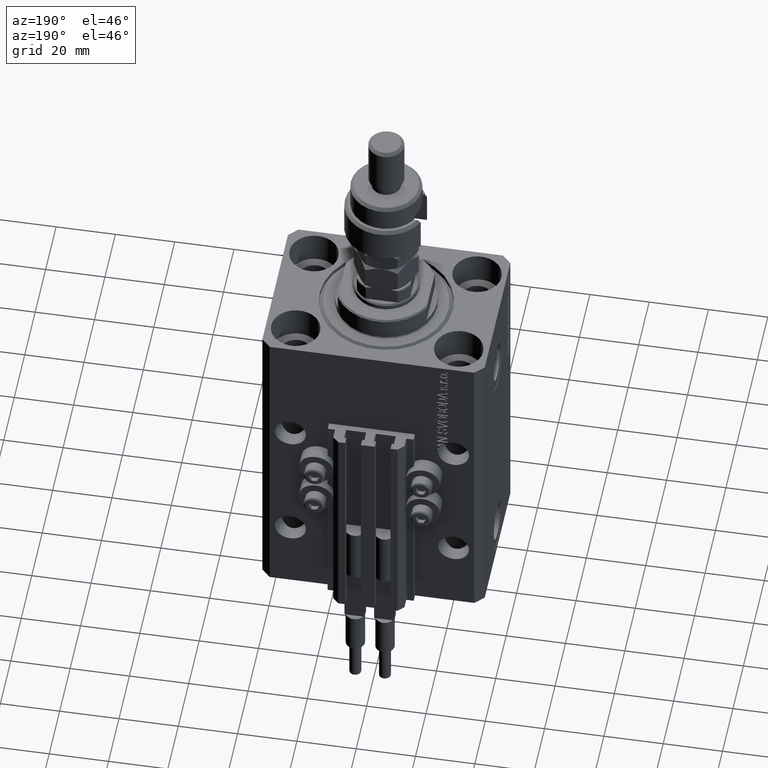
[diagram: clean part render]
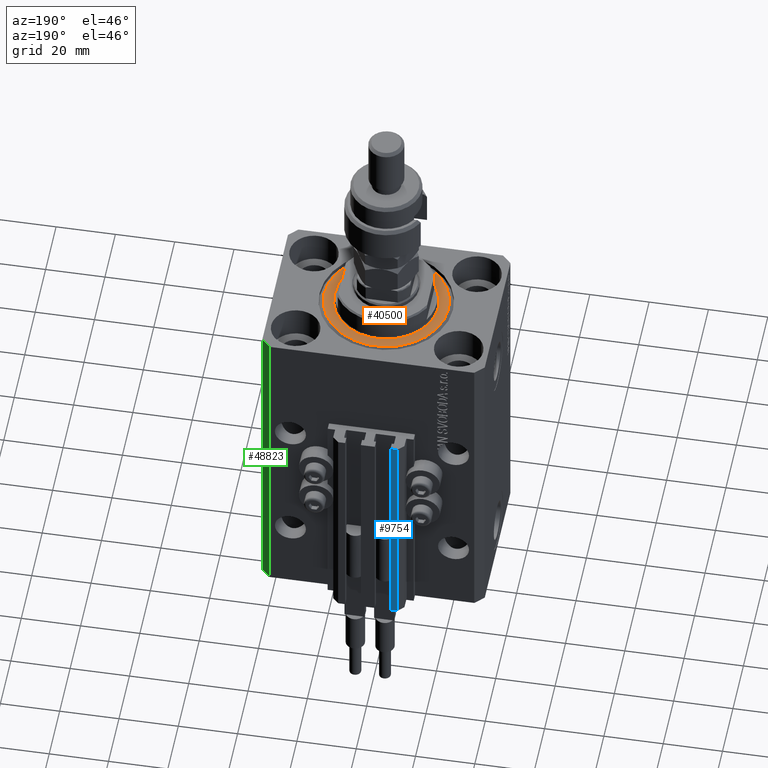
[diagram: same view with three faces highlighted in distinct colors, each labeled with its STEP entity id]
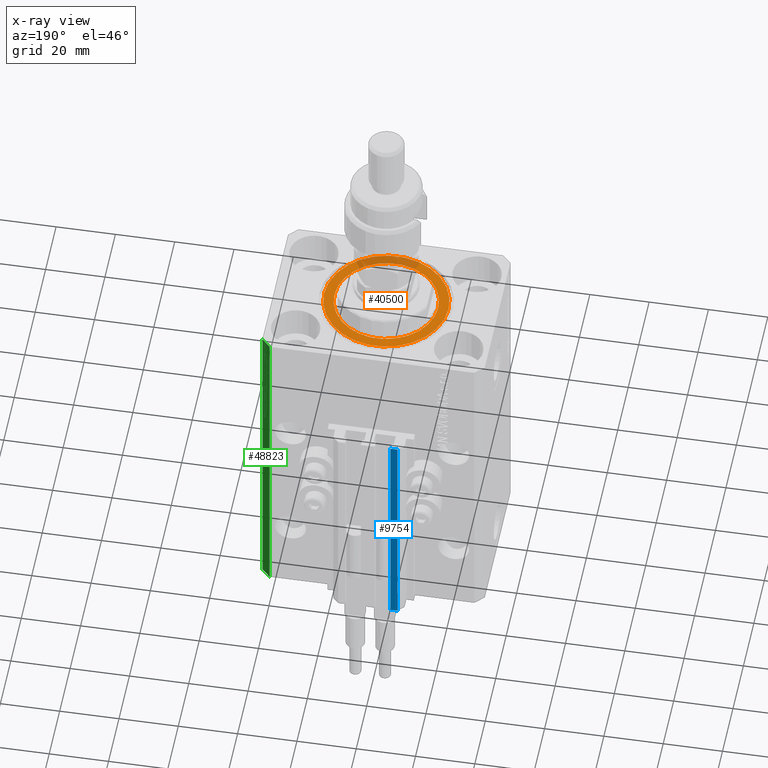
[diagram: x-ray of the same camera — body ghosted, the three highlighted faces saturated]
A machine part, auxiliary view with three faces highlighted in distinct colors.
The next image is the same camera in x-ray (body ghosted, the three faces saturated) — at least one of them is partly hidden behind the body in this view.
Their STEP definitions:

[orange] entity #40500 — the highlighted planar face has unit normal (0, 0, -1).
#684 = CARTESIAN_POINT ( 'NONE',  ( 0.000000000000000000, 0.000000000000000000, 0.000000000000000000 ) ) ;
#774 = CIRCLE ( 'NONE', #27383, 17.50000000000000000 ) ;
#3404 = AXIS2_PLACEMENT_3D ( 'NONE', #28225, #44122, #46810 ) ;
#5910 = DIRECTION ( 'NONE',  ( -0.000000000000000000, -0.000000000000000000, -1.000000000000000000 ) ) ;
#9496 = EDGE_LOOP ( 'NONE', ( #12014, #19168 ) ) ;
#9621 = DIRECTION ( 'NONE',  ( 1.000000000000000000, 0.000000000000000000, 0.000000000000000000 ) ) ;
#11576 = VERTEX_POINT ( 'NONE', #39689 ) ;
#12014 = ORIENTED_EDGE ( 'NONE', *, *, #48990, .T. ) ;
#12615 = FACE_OUTER_BOUND ( 'NONE', #42175, .T. ) ;
#12857 = ORIENTED_EDGE ( 'NONE', *, *, #21390, .T. ) ;
#19168 = ORIENTED_EDGE ( 'NONE', *, *, #51057, .T. ) ;
#19332 = VERTEX_POINT ( 'NONE', #33839 ) ;
#19882 = FACE_BOUND ( 'NONE', #9496, .T. ) ;
#19951 = CIRCLE ( 'NONE', #45762, 17.50000000000000000 ) ;
#21390 = EDGE_CURVE ( 'NONE', #48632, #19332, #42861, .T. ) ;
#22086 = AXIS2_PLACEMENT_3D ( 'NONE', #33503, #5910, #46774 ) ;
#22279 = ORIENTED_EDGE ( 'NONE', *, *, #30660, .T. ) ;
#27383 = AXIS2_PLACEMENT_3D ( 'NONE', #49214, #45299, #9621 ) ;
#28225 = CARTESIAN_POINT ( 'NONE',  ( 0.000000000000000000, 0.000000000000000000, 0.000000000000000000 ) ) ;
#28353 = CARTESIAN_POINT ( 'NONE',  ( 17.50000000000000000, 0.000000000000000000, -2.168404344971008868E-16 ) ) ;
#30569 = AXIS2_PLACEMENT_3D ( 'NONE', #684, #32964, #44192 ) ;
#30660 = EDGE_CURVE ( 'NONE', #19332, #48632, #46380, .T. ) ;
#32964 = DIRECTION ( 'NONE',  ( -0.000000000000000000, -0.000000000000000000, -1.000000000000000000 ) ) ;
#33503 = CARTESIAN_POINT ( 'NONE',  ( 0.000000000000000000, 0.000000000000000000, 0.000000000000000000 ) ) ;
#33839 = CARTESIAN_POINT ( 'NONE',  ( 20.99999999999998934, 0.000000000000000000, 0.000000000000000000 ) ) ;
#39560 = CARTESIAN_POINT ( 'NONE',  ( 0.000000000000000000, 0.000000000000000000, 0.000000000000000000 ) ) ;
#39684 = PLANE ( 'NONE',  #3404 ) ;
#39689 = CARTESIAN_POINT ( 'NONE',  ( -17.50000000000000000, 2.143131898507868643E-15, -2.168404344971008868E-16 ) ) ;
#40500 = ADVANCED_FACE ( 'NONE', ( #19882, #12615 ), #39684, .F. ) ;
#42175 = EDGE_LOOP ( 'NONE', ( #22279, #12857 ) ) ;
#42861 = CIRCLE ( 'NONE', #22086, 20.99999999999998934 ) ;
#44122 = DIRECTION ( 'NONE',  ( 0.000000000000000000, 0.000000000000000000, 1.000000000000000000 ) ) ;
#44192 = DIRECTION ( 'NONE',  ( 1.000000000000000000, 0.000000000000000000, 0.000000000000000000 ) ) ;
#44902 = CARTESIAN_POINT ( 'NONE',  ( -20.99999999999998934, 2.663606788145492628E-15, 0.000000000000000000 ) ) ;
#45299 = DIRECTION ( 'NONE',  ( 0.000000000000000000, 0.000000000000000000, 1.000000000000000000 ) ) ;
#45762 = AXIS2_PLACEMENT_3D ( 'NONE', #39560, #51302, #50263 ) ;
#46380 = CIRCLE ( 'NONE', #30569, 20.99999999999998934 ) ;
#46774 = DIRECTION ( 'NONE',  ( 1.000000000000000000, 0.000000000000000000, 0.000000000000000000 ) ) ;
#46810 = DIRECTION ( 'NONE',  ( 1.000000000000000000, 0.000000000000000000, -0.000000000000000000 ) ) ;
#48632 = VERTEX_POINT ( 'NONE', #44902 ) ;
#48990 = EDGE_CURVE ( 'NONE', #50242, #11576, #774, .T. ) ;
#49214 = CARTESIAN_POINT ( 'NONE',  ( 0.000000000000000000, 0.000000000000000000, 0.000000000000000000 ) ) ;
#50242 = VERTEX_POINT ( 'NONE', #28353 ) ;
#50263 = DIRECTION ( 'NONE',  ( 1.000000000000000000, 0.000000000000000000, 0.000000000000000000 ) ) ;
#51057 = EDGE_CURVE ( 'NONE', #11576, #50242, #19951, .T. ) ;
#51302 = DIRECTION ( 'NONE',  ( 0.000000000000000000, 0.000000000000000000, 1.000000000000000000 ) ) ;

[blue] entity #9754 — the highlighted planar face has unit normal (0, 1, 0).
#2335 = EDGE_LOOP ( 'NONE', ( #50160, #20961, #28996, #10109 ) ) ;
#3429 = DIRECTION ( 'NONE',  ( 0.000000000000000000, 0.000000000000000000, 1.000000000000000000 ) ) ;
#5832 = LINE ( 'NONE', #21712, #8537 ) ;
#7345 = CARTESIAN_POINT ( 'NONE',  ( -7.650000000000000355, 35.50000000000000000, -110.0000000000000000 ) ) ;
#8276 = VERTEX_POINT ( 'NONE', #20667 ) ;
#8537 = VECTOR ( 'NONE', #13401, 1000.000000000000000 ) ;
#9754 = ADVANCED_FACE ( 'NONE', ( #35426 ), #31528, .T. ) ;
#10109 = ORIENTED_EDGE ( 'NONE', *, *, #22781, .T. ) ;
#11749 = CARTESIAN_POINT ( 'NONE',  ( -7.650000000000000355, 35.50000000000000000, -110.0000000000000000 ) ) ;
#11934 = EDGE_CURVE ( 'NONE', #8276, #40919, #15427, .T. ) ;
#13401 = DIRECTION ( 'NONE',  ( -1.000000000000000000, 0.000000000000000000, 0.000000000000000000 ) ) ;
#15201 = AXIS2_PLACEMENT_3D ( 'NONE', #11749, #47444, #27629 ) ;
#15427 = LINE ( 'NONE', #7345, #21007 ) ;
#15925 = CARTESIAN_POINT ( 'NONE',  ( -7.650000000000000355, 35.50000000000000000, -110.0000000000000000 ) ) ;
#16364 = CARTESIAN_POINT ( 'NONE',  ( -10.00000000000000000, 35.50000000000000000, -110.0000000000000000 ) ) ;
#20667 = CARTESIAN_POINT ( 'NONE',  ( -7.650000000000000355, 35.50000000000000000, -110.0000000000000000 ) ) ;
#20961 = ORIENTED_EDGE ( 'NONE', *, *, #38728, .F. ) ;
#21007 = VECTOR ( 'NONE', #50584, 1000.000000000000000 ) ;
#21712 = CARTESIAN_POINT ( 'NONE',  ( -7.650000000000000355, 35.50000000000000000, -33.00000000000000000 ) ) ;
#22425 = LINE ( 'NONE', #50562, #29593 ) ;
#22781 = EDGE_CURVE ( 'NONE', #40919, #44731, #22425, .T. ) ;
#26637 = CARTESIAN_POINT ( 'NONE',  ( -7.650000000000000355, 35.50000000000000000, -33.00000000000000000 ) ) ;
#27629 = DIRECTION ( 'NONE',  ( 0.000000000000000000, 0.000000000000000000, 1.000000000000000000 ) ) ;
#28996 = ORIENTED_EDGE ( 'NONE', *, *, #11934, .T. ) ;
#29593 = VECTOR ( 'NONE', #3429, 1000.000000000000000 ) ;
#31528 = PLANE ( 'NONE',  #15201 ) ;
#32983 = CARTESIAN_POINT ( 'NONE',  ( -10.00000000000000000, 35.50000000000000000, -33.00000000000000000 ) ) ;
#35426 = FACE_OUTER_BOUND ( 'NONE', #2335, .T. ) ;
#38728 = EDGE_CURVE ( 'NONE', #8276, #44291, #47705, .T. ) ;
#40919 = VERTEX_POINT ( 'NONE', #16364 ) ;
#41569 = VECTOR ( 'NONE', #47443, 1000.000000000000000 ) ;
#44224 = EDGE_CURVE ( 'NONE', #44291, #44731, #5832, .T. ) ;
#44291 = VERTEX_POINT ( 'NONE', #26637 ) ;
#44731 = VERTEX_POINT ( 'NONE', #32983 ) ;
#47443 = DIRECTION ( 'NONE',  ( 0.000000000000000000, 0.000000000000000000, 1.000000000000000000 ) ) ;
#47444 = DIRECTION ( 'NONE',  ( 0.000000000000000000, 1.000000000000000000, -0.000000000000000000 ) ) ;
#47705 = LINE ( 'NONE', #15925, #41569 ) ;
#50160 = ORIENTED_EDGE ( 'NONE', *, *, #44224, .F. ) ;
#50562 = CARTESIAN_POINT ( 'NONE',  ( -10.00000000000000000, 35.50000000000000000, -110.0000000000000000 ) ) ;
#50584 = DIRECTION ( 'NONE',  ( -1.000000000000000000, 0.000000000000000000, 0.000000000000000000 ) ) ;

[green] entity #48823 — the highlighted planar face has unit normal (0.7071, 0.7071, 0).
#278 = DIRECTION ( 'NONE',  ( 0.000000000000000000, 0.000000000000000000, 1.000000000000000000 ) ) ;
#398 = DIRECTION ( 'NONE',  ( 0.000000000000000000, 0.000000000000000000, 1.000000000000000000 ) ) ;
#2094 = VECTOR ( 'NONE', #15143, 1000.000000000000114 ) ;
#2513 = VERTEX_POINT ( 'NONE', #35991 ) ;
#4029 = ORIENTED_EDGE ( 'NONE', *, *, #10425, .F. ) ;
#4327 = LINE ( 'NONE', #24107, #33580 ) ;
#10425 = EDGE_CURVE ( 'NONE', #2513, #30492, #50126, .T. ) ;
#11019 = FACE_OUTER_BOUND ( 'NONE', #17225, .T. ) ;
#11085 = VERTEX_POINT ( 'NONE', #17912 ) ;
#11982 = DIRECTION ( 'NONE',  ( 0.7071067811865594521, 0.7071067811865356934, -0.000000000000000000 ) ) ;
#12507 = CARTESIAN_POINT ( 'NONE',  ( 37.50000000000051870, 24.49999999999995381, -110.0000000000000000 ) ) ;
#13937 = CARTESIAN_POINT ( 'NONE',  ( 37.50000000000051870, 24.49999999999995381, 0.000000000000000000 ) ) ;
#14106 = LINE ( 'NONE', #50298, #2094 ) ;
#15143 = DIRECTION ( 'NONE',  ( -0.7071067811865356934, 0.7071067811865594521, 0.000000000000000000 ) ) ;
#15446 = EDGE_CURVE ( 'NONE', #11085, #30492, #4327, .T. ) ;
#17225 = EDGE_LOOP ( 'NONE', ( #4029, #18403, #39843, #38315 ) ) ;
#17912 = CARTESIAN_POINT ( 'NONE',  ( 34.50000000000056843, 27.50000000000000000, -110.0000000000000000 ) ) ;
#18145 = EDGE_CURVE ( 'NONE', #35467, #11085, #14106, .T. ) ;
#18266 = CARTESIAN_POINT ( 'NONE',  ( 37.50000000000051870, 24.49999999999995381, -110.0000000000000000 ) ) ;
#18403 = ORIENTED_EDGE ( 'NONE', *, *, #35507, .F. ) ;
#24107 = CARTESIAN_POINT ( 'NONE',  ( 34.50000000000056843, 27.50000000000000000, -110.0000000000000000 ) ) ;
#27334 = VECTOR ( 'NONE', #278, 1000.000000000000000 ) ;
#28143 = LINE ( 'NONE', #47181, #27334 ) ;
#30492 = VERTEX_POINT ( 'NONE', #33796 ) ;
#33580 = VECTOR ( 'NONE', #398, 1000.000000000000000 ) ;
#33796 = CARTESIAN_POINT ( 'NONE',  ( 34.50000000000056843, 27.50000000000000000, 0.000000000000000000 ) ) ;
#35467 = VERTEX_POINT ( 'NONE', #18266 ) ;
#35507 = EDGE_CURVE ( 'NONE', #35467, #2513, #28143, .T. ) ;
#35991 = CARTESIAN_POINT ( 'NONE',  ( 37.50000000000051870, 24.49999999999995381, 0.000000000000000000 ) ) ;
#38315 = ORIENTED_EDGE ( 'NONE', *, *, #15446, .T. ) ;
#38342 = DIRECTION ( 'NONE',  ( -0.7071067811865356934, 0.7071067811865594521, 0.000000000000000000 ) ) ;
#39843 = ORIENTED_EDGE ( 'NONE', *, *, #18145, .T. ) ;
#40098 = PLANE ( 'NONE',  #48196 ) ;
#45457 = DIRECTION ( 'NONE',  ( -0.7071067811865356934, 0.7071067811865594521, 0.000000000000000000 ) ) ;
#47181 = CARTESIAN_POINT ( 'NONE',  ( 37.50000000000051870, 24.49999999999995381, -110.0000000000000000 ) ) ;
#48196 = AXIS2_PLACEMENT_3D ( 'NONE', #12507, #11982, #38342 ) ;
#48823 = ADVANCED_FACE ( 'NONE', ( #11019 ), #40098, .T. ) ;
#49218 = VECTOR ( 'NONE', #45457, 1000.000000000000114 ) ;
#50126 = LINE ( 'NONE', #13937, #49218 ) ;
#50298 = CARTESIAN_POINT ( 'NONE',  ( 37.50000000000051870, 24.49999999999995381, -110.0000000000000000 ) ) ;